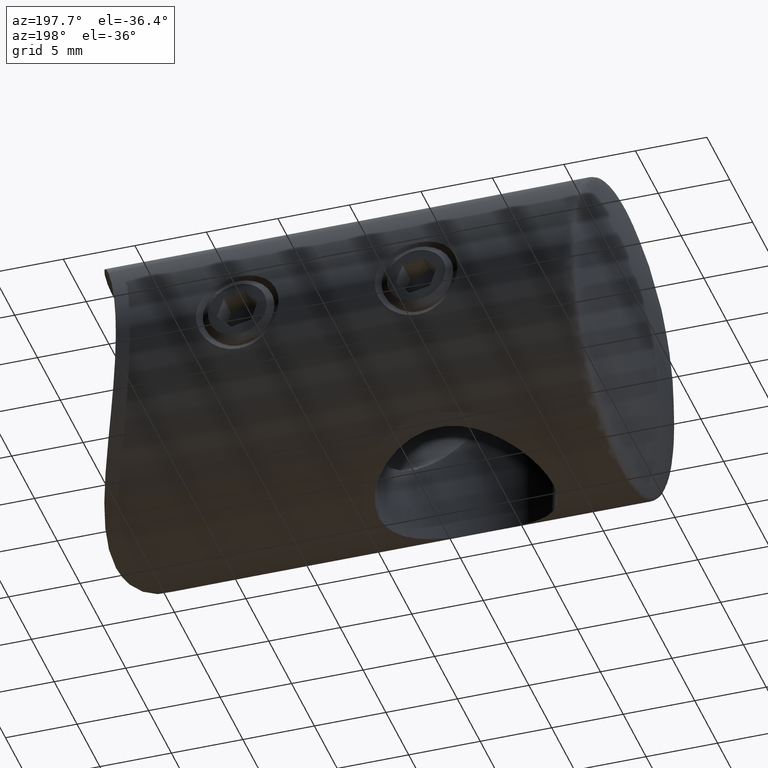
[diagram: clean part render]
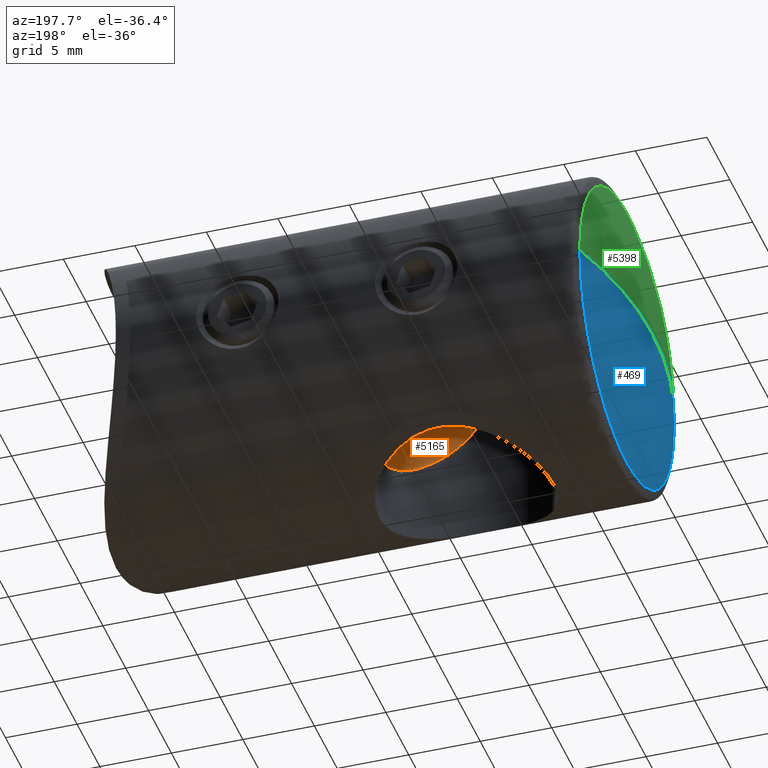
[diagram: same view with three faces highlighted in distinct colors, each labeled with its STEP entity id]
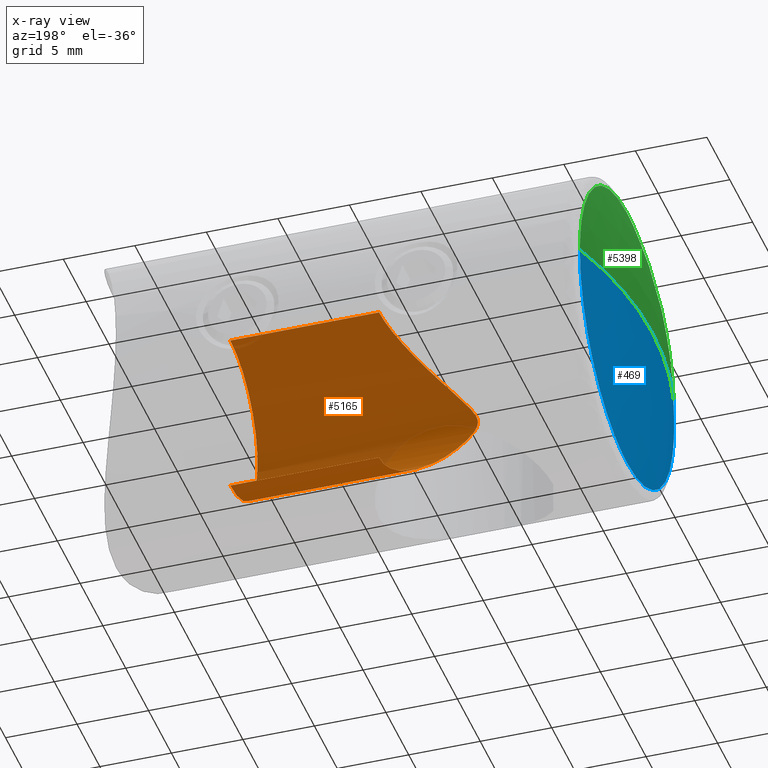
[diagram: x-ray of the same camera — body ghosted, the three highlighted faces saturated]
A machine part, auxiliary view with three faces highlighted in distinct colors.
The next image is the same camera in x-ray (body ghosted, the three faces saturated) — at least one of them is partly hidden behind the body in this view.
Their STEP definitions:

[orange] entity #5165 — the highlighted cylindrical surface (partial cylindrical patch) has radius 6 mm, axis along (1, 0, 0).
#12 = CARTESIAN_POINT ( 'NONE',  ( 19.08699227652847300, -0.4581863920443702300, 5.986776841821497700 ) ) ;
#30 = CARTESIAN_POINT ( 'NONE',  ( 14.52828053260478900, -5.907088874876279800, -1.067518432789159800 ) ) ;
#47 = CARTESIAN_POINT ( 'NONE',  ( 14.09709630235656700, -6.000532608878985200, 0.08119542867002296800 ) ) ;
#67 = CARTESIAN_POINT ( 'NONE',  ( 17.03546588734645800, -4.578000962854747300, 3.882821764511692500 ) ) ;
#275 = AXIS2_PLACEMENT_3D ( 'NONE', #2053, #2087, #2534 ) ;
#298 = CIRCLE ( 'NONE', #1943, 5.999999999999997300 ) ;
#332 = DIRECTION ( 'NONE',  ( 1.000000000000000000, 0.0000000000000000000, 0.0000000000000000000 ) ) ;
#354 = CARTESIAN_POINT ( 'NONE',  ( 12.50000000000000000, 0.0000000000000000000, -5.999999999999997300 ) ) ;
#431 = CARTESIAN_POINT ( 'NONE',  ( 14.11236880086794100, -5.997794032957733300, 0.1963386571879353100 ) ) ;
#459 = ORIENTED_EDGE ( 'NONE', *, *, #1400, .T. ) ;
#472 = CARTESIAN_POINT ( 'NONE',  ( 18.15461525477164500, -3.284818968460049900, -5.036149158830046900 ) ) ;
#493 = CARTESIAN_POINT ( 'NONE',  ( 14.76027611736755000, -5.842144089172054000, 1.379715499365431700 ) ) ;
#496 = EDGE_CURVE ( 'NONE', #2940, #3665, #4226, .T. ) ;
#749 = CARTESIAN_POINT ( 'NONE',  ( 29.50000000000000700, 7.347880794884116800E-016, 5.999999999999997300 ) ) ;
#839 = CARTESIAN_POINT ( 'NONE',  ( 18.83974139897807700, -1.776127246428554900, 5.735221665599121700 ) ) ;
#857 = CARTESIAN_POINT ( 'NONE',  ( 14.21471702056687500, -5.978051632757892100, 0.5228473517281631000 ) ) ;
#878 = CARTESIAN_POINT ( 'NONE',  ( 18.99867978112224200, -1.128976482938361100, -5.896968958645380200 ) ) ;
#902 = CARTESIAN_POINT ( 'NONE',  ( 17.44320576359917000, -4.183644413466328000, -4.304999819191205100 ) ) ;
#923 = CARTESIAN_POINT ( 'NONE',  ( 18.99861316091675100, -1.129557212224672000, 5.896901283105533400 ) ) ;
#1228 = CARTESIAN_POINT ( 'NONE',  ( 29.50000000000000700, 0.0000000000000000000, 0.0000000000000000000 ) ) ;
#1257 = CARTESIAN_POINT ( 'NONE',  ( 14.49304698887914900, -5.916082340284107000, 1.016972055081017500 ) ) ;
#1274 = CARTESIAN_POINT ( 'NONE',  ( 18.84190435343226600, -1.768678688368209700, -5.737423451550247600 ) ) ;
#1295 = CARTESIAN_POINT ( 'NONE',  ( 18.70314090602654000, -2.174914845079118500, -5.596069833529700300 ) ) ;
#1317 = CARTESIAN_POINT ( 'NONE',  ( 16.05788599306224300, -5.289015128960682200, 2.854890605962874700 ) ) ;
#1327 = LINE ( 'NONE', #354, #3060 ) ;
#1338 = CARTESIAN_POINT ( 'NONE',  ( 19.09678120967652900, -0.2284063135788974600, -5.996727648138245200 ) ) ;
#1400 = EDGE_CURVE ( 'NONE', #3665, #5254, #298, .T. ) ;
#1601 = CARTESIAN_POINT ( 'NONE',  ( 19.10000000000001200, 6.389121337868506200E-016, 6.000000000000011500 ) ) ;
#1640 = DIRECTION ( 'NONE',  ( 0.0000000000000000000, 0.0000000000000000000, 1.000000000000000000 ) ) ;
#1688 = CARTESIAN_POINT ( 'NONE',  ( 18.90066426925798700, -1.562504570077953400, 5.797234142836218900 ) ) ;
#1707 = CARTESIAN_POINT ( 'NONE',  ( 19.10000000000000900, -0.2271659693036376400, 6.000000000000013300 ) ) ;
#1724 = CARTESIAN_POINT ( 'NONE',  ( 14.10726978984618000, -5.998666615169733900, -0.2606453365705523300 ) ) ;
#1744 = CARTESIAN_POINT ( 'NONE',  ( 19.10000000000001200, 6.389121337868506200E-016, 6.000000000000011500 ) ) ;
#1766 = CARTESIAN_POINT ( 'NONE',  ( 18.61866184497172900, -2.384189880646628600, 5.509962026978534800 ) ) ;
#1767 = ORIENTED_EDGE ( 'NONE', *, *, #4783, .F. ) ;
#1943 = AXIS2_PLACEMENT_3D ( 'NONE', #1228, #332, #1640 ) ;
#2053 = CARTESIAN_POINT ( 'NONE',  ( 12.50000000000000000, 0.0000000000000000000, 0.0000000000000000000 ) ) ;
#2087 = DIRECTION ( 'NONE',  ( 1.000000000000000000, -0.0000000000000000000, -0.0000000000000000000 ) ) ;
#2120 = CARTESIAN_POINT ( 'NONE',  ( 17.69108947630574100, -3.903669755666119700, -4.560402006431224300 ) ) ;
#2135 = CARTESIAN_POINT ( 'NONE',  ( 15.21947199255356900, -5.690735427070189100, -1.932858301929023300 ) ) ;
#2156 = CARTESIAN_POINT ( 'NONE',  ( 17.68333908809530500, -3.927641084352086100, 4.552630766172211600 ) ) ;
#2174 = B_SPLINE_CURVE_WITH_KNOTS ( 'NONE', 3,
 ( #1744, #1707, #12, #4747, #923, #1688, #839, #5167, #1766, #3440, #3050, #2156, #3029, #67, #3459, #2989, #5518, #1317, #3419, #4270, #4710, #4727, #493, #1257, #4289, #857, #2602, #431, #47, #1724, #5125, #4669, #30, #2973, #2135, #4252, #3849, #4238, #3400, #3830, #902, #2120, #2564, #472, #5090, #2176, #1295, #1274, #5107, #878, #3868, #3892, #5146, #1338, #3149, #3071 ),
 .UNSPECIFIED., .F., .F.,
 ( 4, 2, 2, 2, 2, 2, 2, 2, 2, 2, 2, 2, 2, 2, 2, 2, 2, 2, 2, 2, 2, 2, 2, 2, 2, 2, 2, 4 ),
 ( 0.02172324121091368700, 0.02240558969988440700, 0.02308793818885512500, 0.02377028667782584600, 0.02445263516679656300, 0.02581733214473800100, 0.02718202912267943600, 0.02786437761165015300, 0.02854672610062086700, 0.02991142307856230200, 0.03059377156753301200, 0.03127612005650372300, 0.03195846854547444000, 0.03229964278995979500, 0.03264081703444515800, 0.03332316552341586800, 0.03400551401238657800, 0.03537021099032801300, 0.03673490796826943400, 0.03809960494621085500, 0.03878195343518157900, 0.03946430192415229000, 0.04082899890209371700, 0.04151134739106442100, 0.04219369588003513100, 0.04287604436900584200, 0.04321721861349120400, 0.04355839285797655200 ),
 .UNSPECIFIED. ) ;
#2176 = CARTESIAN_POINT ( 'NONE',  ( 18.62323405552644900, -2.373378081381925400, -5.514624041614802700 ) ) ;
#2534 = DIRECTION ( 'NONE',  ( 0.0000000000000000000, 0.0000000000000000000, -1.000000000000000000 ) ) ;
#2564 = CARTESIAN_POINT ( 'NONE',  ( 17.81187412670849900, -3.754116528396960600, -4.684529602062690800 ) ) ;
#2602 = CARTESIAN_POINT ( 'NONE',  ( 14.17123005591020000, -5.986578135050136100, 0.4158898448259930000 ) ) ;
#2940 = VERTEX_POINT ( 'NONE', #1601 ) ;
#2973 = CARTESIAN_POINT ( 'NONE',  ( 14.92970361257087800, -5.793410516762509000, -1.602988741193341900 ) ) ;
#2989 = CARTESIAN_POINT ( 'NONE',  ( 16.62229192822381700, -4.911189646547896400, 3.451490201749113100 ) ) ;
#3029 = CARTESIAN_POINT ( 'NONE',  ( 17.43383220536953700, -4.205168599470316500, 4.295829108970879800 ) ) ;
#3050 = CARTESIAN_POINT ( 'NONE',  ( 18.14251449709417900, -3.303721257725591000, 5.023767235037889000 ) ) ;
#3060 = VECTOR ( 'NONE', #3288, 1000.000000000000000 ) ;
#3071 = CARTESIAN_POINT ( 'NONE',  ( 19.09999999999999800, 0.0000000000000000000, -5.999999999999997300 ) ) ;
#3100 = VECTOR ( 'NONE', #5454, 1000.000000000000000 ) ;
#3149 = CARTESIAN_POINT ( 'NONE',  ( 19.10000000000000100, -0.1157169398392688800, -5.999999999999998200 ) ) ;
#3288 = DIRECTION ( 'NONE',  ( 1.000000000000000000, -0.0000000000000000000, -0.0000000000000000000 ) ) ;
#3370 = CARTESIAN_POINT ( 'NONE',  ( 29.50000000000000700, 0.0000000000000000000, -5.999999999999997300 ) ) ;
#3400 = CARTESIAN_POINT ( 'NONE',  ( 16.92474351055228600, -4.683463197670233700, -3.768110251325425400 ) ) ;
#3419 = CARTESIAN_POINT ( 'NONE',  ( 15.76879250289883700, -5.444675978128498400, 2.544961395354703900 ) ) ;
#3440 = CARTESIAN_POINT ( 'NONE',  ( 18.35398748301569000, -2.952915049944153700, 5.239891641122566700 ) ) ;
#3459 = CARTESIAN_POINT ( 'NONE',  ( 16.89858367248553300, -4.694872512248220900, 3.740419822809394600 ) ) ;
#3647 = CARTESIAN_POINT ( 'NONE',  ( 12.50000000000000000, 7.347880794884116800E-016, 5.999999999999997300 ) ) ;
#3665 = VERTEX_POINT ( 'NONE', #749 ) ;
#3788 = CARTESIAN_POINT ( 'NONE',  ( 19.09999999999999800, 0.0000000000000000000, -5.999999999999997300 ) ) ;
#3830 = CARTESIAN_POINT ( 'NONE',  ( 17.31581351331387000, -4.314610469693163500, -4.173428697406117200 ) ) ;
#3849 = CARTESIAN_POINT ( 'NONE',  ( 16.08946042125339900, -5.270596921733537800, -2.888632937725960300 ) ) ;
#3868 = CARTESIAN_POINT ( 'NONE',  ( 19.03664790492240400, -0.9055936681762556400, -5.935582502475159400 ) ) ;
#3885 = ORIENTED_EDGE ( 'NONE', *, *, #5275, .F. ) ;
#3892 = CARTESIAN_POINT ( 'NONE',  ( 19.07452909582073600, -0.5682435384484991700, -5.974103210097232400 ) ) ;
#4008 = VERTEX_POINT ( 'NONE', #3788 ) ;
#4226 = LINE ( 'NONE', #3647, #3100 ) ;
#4238 = CARTESIAN_POINT ( 'NONE',  ( 16.65216707980437500, -4.897512963440882500, -3.483928663625428100 ) ) ;
#4252 = CARTESIAN_POINT ( 'NONE',  ( 15.79748939338133200, -5.429970416177273100, -2.576010907524906900 ) ) ;
#4253 = FACE_OUTER_BOUND ( 'NONE', #4402, .T. ) ;
#4270 = CARTESIAN_POINT ( 'NONE',  ( 15.33384902771387600, -5.638113676006240000, 2.059612931862495200 ) ) ;
#4289 = CARTESIAN_POINT ( 'NONE',  ( 14.36547377586953500, -5.946094215811682700, 0.8281583696399317200 ) ) ;
#4402 = EDGE_LOOP ( 'NONE', ( #3885, #5387, #459, #1767 ) ) ;
#4532 = CYLINDRICAL_SURFACE ( 'NONE', #275, 5.999999999999997300 ) ;
#4669 = CARTESIAN_POINT ( 'NONE',  ( 14.39860138851802600, -5.938475861667334300, -0.8803374148661774500 ) ) ;
#4710 = CARTESIAN_POINT ( 'NONE',  ( 15.18867009626969500, -5.695871170856511500, 1.894378150601907100 ) ) ;
#4727 = CARTESIAN_POINT ( 'NONE',  ( 14.90151385850353800, -5.798057453252640800, 1.553752471037041400 ) ) ;
#4747 = CARTESIAN_POINT ( 'NONE',  ( 19.03618116509220200, -0.9088050872205756200, 5.935107837020894700 ) ) ;
#4783 = EDGE_CURVE ( 'NONE', #4008, #5254, #1327, .T. ) ;
#5090 = CARTESIAN_POINT ( 'NONE',  ( 18.35977558609255000, -2.942370593312966700, -5.245804289312340900 ) ) ;
#5107 = CARTESIAN_POINT ( 'NONE',  ( 18.90136433121722300, -1.559694215450513600, -5.797946597938382900 ) ) ;
#5125 = CARTESIAN_POINT ( 'NONE',  ( 14.18826163875734100, -5.984113608666521400, -0.4804933320983716400 ) ) ;
#5146 = CARTESIAN_POINT ( 'NONE',  ( 19.08404584501366900, -0.4552984938689235700, -5.983779341813082900 ) ) ;
#5165 = ADVANCED_FACE ( 'NONE', ( #4253 ), #4532, .F. ) ;
#5167 = CARTESIAN_POINT ( 'NONE',  ( 18.69857683377558300, -2.187105317994678900, 5.591418950236411300 ) ) ;
#5254 = VERTEX_POINT ( 'NONE', #3370 ) ;
#5275 = EDGE_CURVE ( 'NONE', #2940, #4008, #2174, .T. ) ;
#5387 = ORIENTED_EDGE ( 'NONE', *, *, #496, .T. ) ;
#5454 = DIRECTION ( 'NONE',  ( 1.000000000000000000, -0.0000000000000000000, -0.0000000000000000000 ) ) ;
#5518 = CARTESIAN_POINT ( 'NONE',  ( 16.48228111988052500, -5.011217930539340100, 3.304347924211147500 ) ) ;

[blue] entity #469 — the highlighted spherical surface has radius 31.25 mm.
#171 = CARTESIAN_POINT ( 'NONE',  ( 31.24999999999998900, 0.0000000000000000000, 0.0000000000000000000 ) ) ;
#177 = EDGE_CURVE ( 'NONE', #2479, #4327, #698, .T. ) ;
#287 = DIRECTION ( 'NONE',  ( 0.0000000000000000000, 1.000000000000000000, 0.0000000000000000000 ) ) ;
#318 = CARTESIAN_POINT ( 'NONE',  ( 1.756922039244400500, 1.581413738568378900E-015, -10.33057851239669000 ) ) ;
#469 = ADVANCED_FACE ( 'NONE', ( #4167 ), #3973, .T. ) ;
#471 = DIRECTION ( 'NONE',  ( 0.0000000000000000000, 1.224646799147353200E-016, -1.000000000000000000 ) ) ;
#555 = CARTESIAN_POINT ( 'NONE',  ( 1.756922039244400500, 5.202675417054750900, -9.026718887957201800 ) ) ;
#579 = DIRECTION ( 'NONE',  ( 1.000000000000000000, 0.0000000000000000000, 0.0000000000000000000 ) ) ;
#698 = CIRCLE ( 'NONE', #4828, 31.24999999999998900 ) ;
#710 = EDGE_CURVE ( 'NONE', #4718, #2820, #5067, .T. ) ;
#713 = AXIS2_PLACEMENT_3D ( 'NONE', #5185, #471, #2641 ) ;
#994 = CARTESIAN_POINT ( 'NONE',  ( 0.0000000000000000000, 1.913510623667738700E-015, 0.0000000000000000000 ) ) ;
#1013 = ORIENTED_EDGE ( 'NONE', *, *, #177, .F. ) ;
#1138 = CARTESIAN_POINT ( 'NONE',  ( 1.756922039244400000, -10.33057851239668600, -1.352269565078253500 ) ) ;
#1156 = CARTESIAN_POINT ( 'NONE',  ( 1.756922039244400700, -1.352269565078246600, -10.33057851239669300 ) ) ;
#1211 = CARTESIAN_POINT ( 'NONE',  ( 1.756922039244400000, -8.261021099154740800, -6.348623140236731500 ) ) ;
#1708 = EDGE_CURVE ( 'NONE', #2820, #4327, #5023, .T. ) ;
#1737 = EDGE_CURVE ( 'NONE', #2479, #4718, #4317, .T. ) ;
#1847 = CARTESIAN_POINT ( 'NONE',  ( 1.756922039244400500, 8.261021099154753200, -6.348623140236719000 ) ) ;
#1933 = CARTESIAN_POINT ( 'NONE',  ( 31.24999999999998900, 0.0000000000000000000, 0.0000000000000000000 ) ) ;
#1971 = CARTESIAN_POINT ( 'NONE',  ( 1.756922039244400500, 10.33057851239669000, 9.398703391090517800E-016 ) ) ;
#2088 = EDGE_LOOP ( 'NONE', ( #3021, #4769, #3921, #1013 ) ) ;
#2255 = CARTESIAN_POINT ( 'NONE',  ( 1.756922039244400500, 10.33057851239669000, 9.398703391090517800E-016 ) ) ;
#2379 = DIRECTION ( 'NONE',  ( -0.0000000000000000000, 0.0000000000000000000, -1.000000000000000000 ) ) ;
#2479 = VERTEX_POINT ( 'NONE', #1971 ) ;
#2485 = CARTESIAN_POINT ( 'NONE',  ( 1.756922039244400500, 1.581413738568378900E-015, -10.33057851239669000 ) ) ;
#2513 = CARTESIAN_POINT ( 'NONE',  ( 1.756922039244400500, -10.33057851239669000, -5.583983872732769300E-015 ) ) ;
#2641 = DIRECTION ( 'NONE',  ( 0.0000000000000000000, 1.000000000000000000, 1.224646799147353200E-016 ) ) ;
#2683 = CARTESIAN_POINT ( 'NONE',  ( 1.756922039244400300, 9.026718887957203600, -5.202675417054742000 ) ) ;
#2820 = VERTEX_POINT ( 'NONE', #2513 ) ;
#3021 = ORIENTED_EDGE ( 'NONE', *, *, #1737, .T. ) ;
#3117 = CARTESIAN_POINT ( 'NONE',  ( 1.756922039244400300, 6.348623140236723500, -8.261021099154746100 ) ) ;
#3153 = CARTESIAN_POINT ( 'NONE',  ( 1.756922039244400500, 1.352269565078253900, -10.33057851239669100 ) ) ;
#3354 = CARTESIAN_POINT ( 'NONE',  ( 1.756922039244400500, -6.348623140236711900, -8.261021099154756800 ) ) ;
#3483 = CARTESIAN_POINT ( 'NONE',  ( 1.756922039244400500, 10.33057851239669100, -1.352269565078248400 ) ) ;
#3543 = CARTESIAN_POINT ( 'NONE',  ( 1.756922039244400500, 2.704007069827279300, -10.06170120525118800 ) ) ;
#3662 = CARTESIAN_POINT ( 'NONE',  ( 1.756922039244400500, 1.581413738568378900E-015, -10.33057851239669000 ) ) ;
#3766 = CARTESIAN_POINT ( 'NONE',  ( 1.756922039244400900, -5.202675417054744700, -9.026718887957205300 ) ) ;
#3921 = ORIENTED_EDGE ( 'NONE', *, *, #1708, .T. ) ;
#3973 = SPHERICAL_SURFACE ( 'NONE', #5206, 31.24999999999998900 ) ;
#4167 = FACE_OUTER_BOUND ( 'NONE', #2088, .T. ) ;
#4317 = B_SPLINE_CURVE_WITH_KNOTS ( 'NONE', 3,
 ( #2255, #3483, #5230, #2683, #1847, #3117, #555, #3543, #3153, #3662 ),
 .UNSPECIFIED., .F., .F.,
 ( 4, 2, 2, 2, 4 ),
 ( 0.2500000000000000000, 0.3125000000000000000, 0.3750000000000000000, 0.4375000000000000000, 0.5000000000000000000 ),
 .UNSPECIFIED. ) ;
#4327 = VERTEX_POINT ( 'NONE', #994 ) ;
#4570 = CARTESIAN_POINT ( 'NONE',  ( 1.756922039244400500, -2.704007069827273600, -10.06170120525119000 ) ) ;
#4718 = VERTEX_POINT ( 'NONE', #318 ) ;
#4769 = ORIENTED_EDGE ( 'NONE', *, *, #710, .T. ) ;
#4828 = AXIS2_PLACEMENT_3D ( 'NONE', #171, #4835, #579 ) ;
#4835 = DIRECTION ( 'NONE',  ( -0.0000000000000000000, 0.0000000000000000000, 1.000000000000000000 ) ) ;
#4980 = CARTESIAN_POINT ( 'NONE',  ( 1.756922039244400300, -9.026718887957201800, -5.202675417054749100 ) ) ;
#4993 = CARTESIAN_POINT ( 'NONE',  ( 1.756922039244400500, -10.06170120525118800, -2.704007069827281600 ) ) ;
#5023 = CIRCLE ( 'NONE', #713, 31.24999999999998900 ) ;
#5067 = B_SPLINE_CURVE_WITH_KNOTS ( 'NONE', 3,
 ( #2485, #1156, #4570, #3766, #3354, #1211, #4980, #4993, #1138, #5404 ),
 .UNSPECIFIED., .F., .F.,
 ( 4, 2, 2, 2, 4 ),
 ( 0.5000000000000000000, 0.5625000000000000000, 0.6250000000000000000, 0.6875000000000000000, 0.7500000000000000000 ),
 .UNSPECIFIED. ) ;
#5185 = CARTESIAN_POINT ( 'NONE',  ( 31.24999999999998900, 0.0000000000000000000, 0.0000000000000000000 ) ) ;
#5206 = AXIS2_PLACEMENT_3D ( 'NONE', #1933, #2379, #287 ) ;
#5230 = CARTESIAN_POINT ( 'NONE',  ( 1.756922039244400700, 10.06170120525119000, -2.704007069827276200 ) ) ;
#5404 = CARTESIAN_POINT ( 'NONE',  ( 1.756922039244400500, -10.33057851239669000, -5.583983872732769300E-015 ) ) ;

[green] entity #5398 — the highlighted spherical surface has radius 31.25 mm.
#86 = CARTESIAN_POINT ( 'NONE',  ( 1.756922039244400500, -3.162827477136756300E-016, 10.33057851239669000 ) ) ;
#171 = CARTESIAN_POINT ( 'NONE',  ( 31.24999999999998900, 0.0000000000000000000, 0.0000000000000000000 ) ) ;
#177 = EDGE_CURVE ( 'NONE', #2479, #4327, #698, .T. ) ;
#261 = ORIENTED_EDGE ( 'NONE', *, *, #2177, .T. ) ;
#381 = CARTESIAN_POINT ( 'NONE',  ( 1.756922039244400700, -10.06170120525118800, 2.704007069827273100 ) ) ;
#471 = DIRECTION ( 'NONE',  ( 0.0000000000000000000, 1.224646799147353200E-016, -1.000000000000000000 ) ) ;
#554 = AXIS2_PLACEMENT_3D ( 'NONE', #5266, #4827, #4351 ) ;
#579 = DIRECTION ( 'NONE',  ( 1.000000000000000000, 0.0000000000000000000, 0.0000000000000000000 ) ) ;
#598 = CARTESIAN_POINT ( 'NONE',  ( 1.756922039244400500, 6.348623140236719000, 8.261021099154751500 ) ) ;
#698 = CIRCLE ( 'NONE', #4828, 31.24999999999998900 ) ;
#713 = AXIS2_PLACEMENT_3D ( 'NONE', #5185, #471, #2641 ) ;
#867 = ORIENTED_EDGE ( 'NONE', *, *, #177, .T. ) ;
#992 = CARTESIAN_POINT ( 'NONE',  ( 1.756922039244400500, 10.06170120525118800, 2.704007069827278500 ) ) ;
#994 = CARTESIAN_POINT ( 'NONE',  ( 0.0000000000000000000, 1.913510623667738700E-015, 0.0000000000000000000 ) ) ;
#1031 = CARTESIAN_POINT ( 'NONE',  ( 1.756922039244400700, 2.704007069827276200, 10.06170120525118800 ) ) ;
#1049 = CARTESIAN_POINT ( 'NONE',  ( 1.756922039244400500, 9.026718887957201800, 5.202675417054750000 ) ) ;
#1204 = CARTESIAN_POINT ( 'NONE',  ( 1.756922039244400500, -9.026718887957205300, 5.202675417054743800 ) ) ;
#1633 = CARTESIAN_POINT ( 'NONE',  ( 1.756922039244400300, -1.352269565078255000, 10.33057851239669100 ) ) ;
#1645 = ORIENTED_EDGE ( 'NONE', *, *, #2429, .T. ) ;
#1708 = EDGE_CURVE ( 'NONE', #2820, #4327, #5023, .T. ) ;
#1971 = CARTESIAN_POINT ( 'NONE',  ( 1.756922039244400500, 10.33057851239669000, 9.398703391090517800E-016 ) ) ;
#2177 = EDGE_CURVE ( 'NONE', #2820, #5044, #5414, .T. ) ;
#2429 = EDGE_CURVE ( 'NONE', #5044, #2479, #2759, .T. ) ;
#2479 = VERTEX_POINT ( 'NONE', #1971 ) ;
#2513 = CARTESIAN_POINT ( 'NONE',  ( 1.756922039244400500, -10.33057851239669000, -5.583983872732769300E-015 ) ) ;
#2556 = CARTESIAN_POINT ( 'NONE',  ( 1.756922039244400500, -3.162827477136756300E-016, 10.33057851239669000 ) ) ;
#2641 = DIRECTION ( 'NONE',  ( 0.0000000000000000000, 1.000000000000000000, 1.224646799147353200E-016 ) ) ;
#2759 = B_SPLINE_CURVE_WITH_KNOTS ( 'NONE', 3,
 ( #3069, #3627, #1031, #3139, #598, #3588, #1049, #992, #4836, #4012 ),
 .UNSPECIFIED., .F., .F.,
 ( 4, 2, 2, 2, 4 ),
 ( 0.0000000000000000000, 0.06250000000000000000, 0.1250000000000000000, 0.1875000000000000000, 0.2500000000000000000 ),
 .UNSPECIFIED. ) ;
#2820 = VERTEX_POINT ( 'NONE', #2513 ) ;
#2952 = CARTESIAN_POINT ( 'NONE',  ( 1.756922039244400500, -2.704007069827262900, 10.06170120525119100 ) ) ;
#3069 = CARTESIAN_POINT ( 'NONE',  ( 1.756922039244400500, -3.162827477136756300E-016, 10.33057851239669000 ) ) ;
#3139 = CARTESIAN_POINT ( 'NONE',  ( 1.756922039244400300, 5.202675417054743800, 9.026718887957201800 ) ) ;
#3328 = CARTESIAN_POINT ( 'NONE',  ( 1.756922039244400700, -10.33057851239669300, 1.352269565078247500 ) ) ;
#3367 = CARTESIAN_POINT ( 'NONE',  ( 1.756922039244400500, -8.261021099154756800, 6.348623140236709300 ) ) ;
#3588 = CARTESIAN_POINT ( 'NONE',  ( 1.756922039244400300, 8.261021099154746100, 6.348623140236722600 ) ) ;
#3627 = CARTESIAN_POINT ( 'NONE',  ( 1.756922039244400500, 1.352269565078248800, 10.33057851239669300 ) ) ;
#3808 = ORIENTED_EDGE ( 'NONE', *, *, #1708, .F. ) ;
#4012 = CARTESIAN_POINT ( 'NONE',  ( 1.756922039244400500, 10.33057851239669000, 9.398703391090517800E-016 ) ) ;
#4186 = CARTESIAN_POINT ( 'NONE',  ( 1.756922039244400500, -5.202675417054735800, 9.026718887957207100 ) ) ;
#4219 = CARTESIAN_POINT ( 'NONE',  ( 1.756922039244400700, -6.348623140236732400, 8.261021099154740800 ) ) ;
#4249 = CARTESIAN_POINT ( 'NONE',  ( 1.756922039244400500, -10.33057851239669000, -5.583983872732769300E-015 ) ) ;
#4327 = VERTEX_POINT ( 'NONE', #994 ) ;
#4351 = DIRECTION ( 'NONE',  ( 0.0000000000000000000, 1.000000000000000000, 0.0000000000000000000 ) ) ;
#4728 = SPHERICAL_SURFACE ( 'NONE', #554, 31.24999999999998900 ) ;
#4827 = DIRECTION ( 'NONE',  ( -0.0000000000000000000, 0.0000000000000000000, -1.000000000000000000 ) ) ;
#4828 = AXIS2_PLACEMENT_3D ( 'NONE', #171, #4835, #579 ) ;
#4835 = DIRECTION ( 'NONE',  ( -0.0000000000000000000, 0.0000000000000000000, 1.000000000000000000 ) ) ;
#4836 = CARTESIAN_POINT ( 'NONE',  ( 1.756922039244400500, 10.33057851239669100, 1.352269565078253200 ) ) ;
#4945 = EDGE_LOOP ( 'NONE', ( #3808, #261, #1645, #867 ) ) ;
#4991 = FACE_OUTER_BOUND ( 'NONE', #4945, .T. ) ;
#5023 = CIRCLE ( 'NONE', #713, 31.24999999999998900 ) ;
#5044 = VERTEX_POINT ( 'NONE', #2556 ) ;
#5185 = CARTESIAN_POINT ( 'NONE',  ( 31.24999999999998900, 0.0000000000000000000, 0.0000000000000000000 ) ) ;
#5266 = CARTESIAN_POINT ( 'NONE',  ( 31.24999999999998900, 0.0000000000000000000, 0.0000000000000000000 ) ) ;
#5398 = ADVANCED_FACE ( 'NONE', ( #4991 ), #4728, .T. ) ;
#5414 = B_SPLINE_CURVE_WITH_KNOTS ( 'NONE', 3,
 ( #4249, #3328, #381, #1204, #3367, #4219, #4186, #2952, #1633, #86 ),
 .UNSPECIFIED., .F., .F.,
 ( 4, 2, 2, 2, 4 ),
 ( 0.7500000000000000000, 0.8125000000000000000, 0.8750000000000000000, 0.9375000000000000000, 1.000000000000000000 ),
 .UNSPECIFIED. ) ;